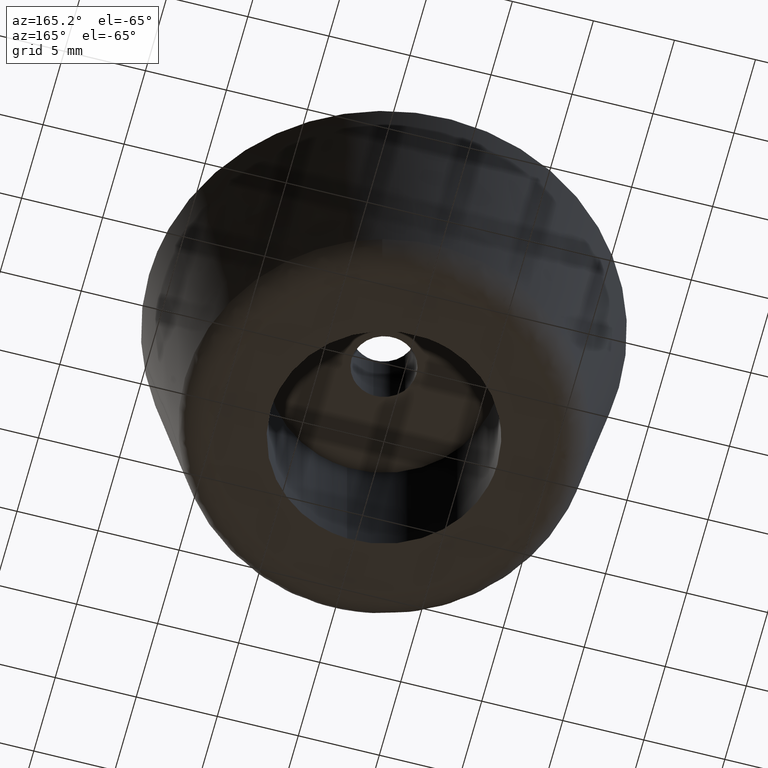
[diagram: clean part render]
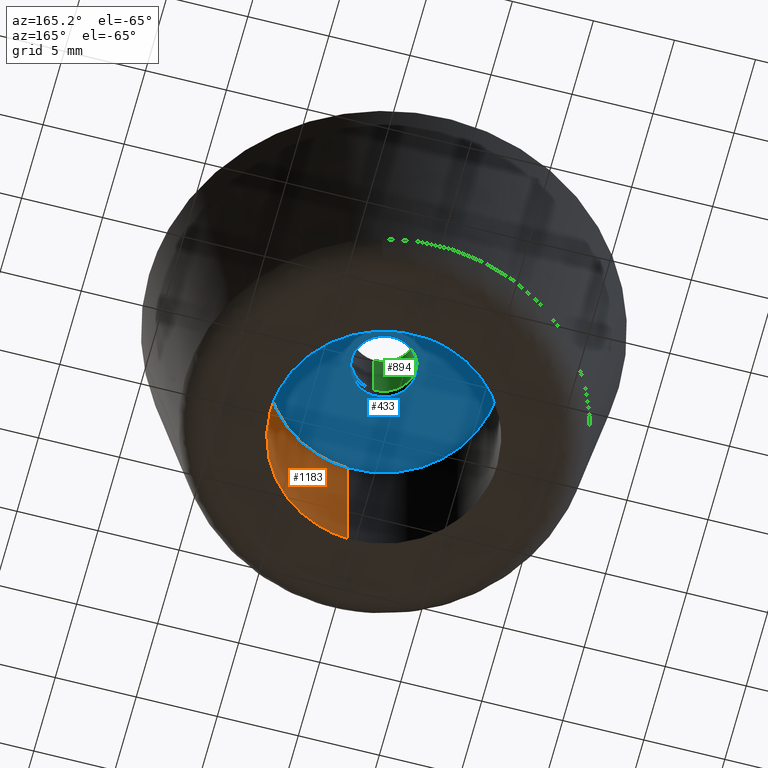
[diagram: same view with three faces highlighted in distinct colors, each labeled with its STEP entity id]
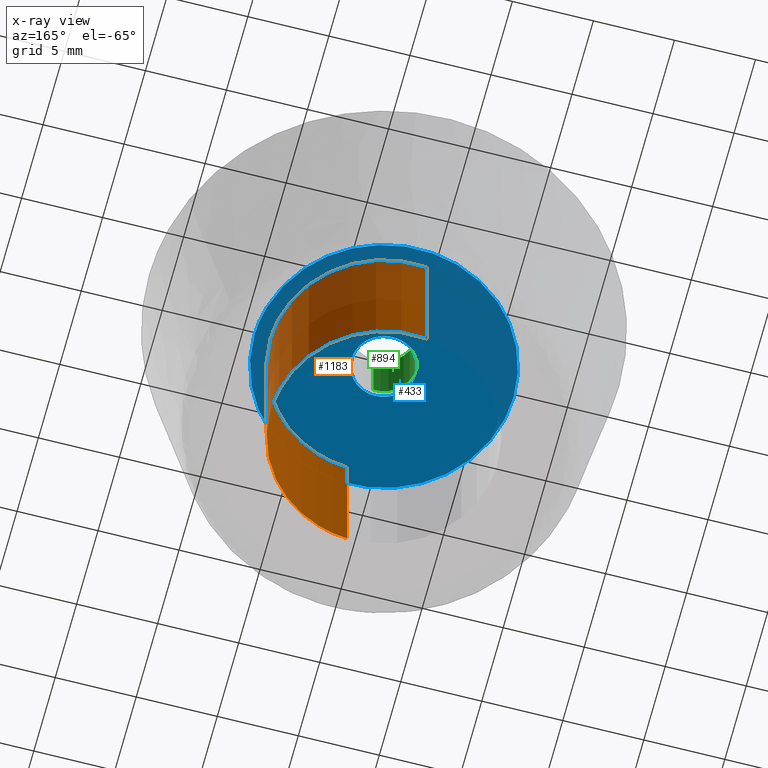
[diagram: x-ray of the same camera — body ghosted, the three highlighted faces saturated]
A machine part, auxiliary view with three faces highlighted in distinct colors.
The next image is the same camera in x-ray (body ghosted, the three faces saturated) — at least one of them is partly hidden behind the body in this view.
Their STEP definitions:

[orange] entity #1183 — the highlighted face is a freeform B-spline surface patch.
#1081=CARTESIAN_POINT('',(-0.826239642597309,6.951066684545665,10.250000000000002));
#1082=CARTESIAN_POINT('',(-0.627303100465844,6.974713308140240,10.250000000000005));
#1083=CARTESIAN_POINT('',(-0.427339776743999,6.986943588953067,10.250000000000000));
#1084=CARTESIAN_POINT('',(6.559603812209068,7.414283365697066,10.250000000000002));
#1085=CARTESIAN_POINT('',(6.986943588953067,0.427339776743999,10.250000000000000));
#1086=CARTESIAN_POINT('',(7.414283365697066,-6.559603812209068,10.250000000000002));
#1087=CARTESIAN_POINT('',(0.427339776743999,-6.986943588953067,10.250000000000000));
#1088=CARTESIAN_POINT('',(-0.826239642597309,6.951066684545665,-0.256250000000000));
#1089=CARTESIAN_POINT('',(-0.627303100465844,6.974713308140240,-0.256250000000000));
#1090=CARTESIAN_POINT('',(-0.427339776743999,6.986943588953067,-0.256250000000000));
#1091=CARTESIAN_POINT('',(6.559603812209068,7.414283365697066,-0.256250000000000));
#1092=CARTESIAN_POINT('',(6.986943588953067,0.427339776743999,-0.256250000000000));
#1093=CARTESIAN_POINT('',(7.414283365697066,-6.559603812209068,-0.256250000000000));
#1094=CARTESIAN_POINT('',(0.427339776743999,-6.986943588953067,-0.256250000000000));
#1102=(BOUNDED_SURFACE()B_SPLINE_SURFACE(2,1,((#1081,#1088),(#1082,#1089),(#1083,#1090),(#1084,#1091),(#1085,#1092),(#1086,#1093),(#1087,#1094)),.UNSPECIFIED.,.F.,.F.,.U.)B_SPLINE_SURFACE_WITH_KNOTS((3,2,2,3),(2,2),(0.0,0.463919189857867,12.061898936304530,23.659878682751181),(0.0,10.506250000000000),.UNSPECIFIED.)GEOMETRIC_REPRESENTATION_ITEM()RATIONAL_B_SPLINE_SURFACE(((0.977505800795127,0.977505800795127),(0.988284271247462,0.988284271247462),(1.0,1.0),(0.707106781186548,0.707106781186548),(1.0,1.0),(0.707106781186548,0.707106781186548),(1.0,1.0)))REPRESENTATION_ITEM('')SURFACE());
#1103=CARTESIAN_POINT('',(-0.826234102055871,6.951067343118522,-2.302776E-014));
#1104=VERTEX_POINT('',#1103);
#1105=CARTESIAN_POINT('',(7.0,0.0,0.0));
#1106=VERTEX_POINT('',#1105);
#1107=CARTESIAN_POINT('',(-0.826234102055871,6.951067343118522,-2.302776E-014));
#1108=CARTESIAN_POINT('',(-0.414566038006035,7.0,0.0));
#1109=CARTESIAN_POINT('',(0.0,7.0,0.0));
#1110=CARTESIAN_POINT('',(6.999999999999999,6.999999999999999,0.0));
#1111=CARTESIAN_POINT('',(7.0,0.0,0.0));
#1119=(BOUNDED_CURVE()B_SPLINE_CURVE(2,(#1107,#1108,#1109,#1110,#1111),.UNSPECIFIED.,.F.,.U.)B_SPLINE_CURVE_WITH_KNOTS((3,2,3),(0.229562608224401,0.250000000000000,0.500000000000000),.UNSPECIFIED.)CURVE()GEOMETRIC_REPRESENTATION_ITEM()RATIONAL_B_SPLINE_CURVE((0.956027018222732,0.976056106154773,1.0,0.707106781186547,1.0))REPRESENTATION_ITEM(''));
#1120=EDGE_CURVE('',#1104,#1106,#1119,.T.);
#1121=ORIENTED_EDGE('',*,*,#1120,.T.);
#1122=CARTESIAN_POINT('',(0.427331635497001,-6.986944086883543,-3.233525E-014));
#1123=VERTEX_POINT('',#1122);
#1124=CARTESIAN_POINT('',(7.0,0.0,0.0));
#1125=CARTESIAN_POINT('',(7.000000000000001,-6.584950155513472,0.0));
#1126=CARTESIAN_POINT('',(0.427331635497001,-6.986944086883544,-3.233525E-014));
#1134=(BOUNDED_CURVE()B_SPLINE_CURVE(2,(#1124,#1125,#1126),.UNSPECIFIED.,.F.,.U.)B_SPLINE_CURVE_WITH_KNOTS((3,3),(0.500000000000000,0.739333163295008),.UNSPECIFIED.)CURVE()GEOMETRIC_REPRESENTATION_ITEM()RATIONAL_B_SPLINE_CURVE((1.0,0.719603757734878,0.976072472568516))REPRESENTATION_ITEM(''));
#1135=EDGE_CURVE('',#1106,#1123,#1134,.T.);
#1136=ORIENTED_EDGE('',*,*,#1135,.T.);
#1137=CARTESIAN_POINT('',(0.427331736019021,-6.986944080735587,10.0));
#1138=VERTEX_POINT('',#1137);
#1139=CARTESIAN_POINT('',(0.427331736019021,-6.986944080735587,10.0));
#1140=CARTESIAN_POINT('',(0.427331635497001,-6.986944086883543,-3.233525E-014));
#1141=QUASI_UNIFORM_CURVE('',1,(#1139,#1140),.UNSPECIFIED.,.F.,.U.);
#1142=EDGE_CURVE('',#1138,#1123,#1141,.T.);
#1143=ORIENTED_EDGE('',*,*,#1142,.F.);
#1144=CARTESIAN_POINT('',(7.0,0.0,10.0));
#1145=VERTEX_POINT('',#1144);
#1146=CARTESIAN_POINT('',(7.0,0.0,10.0));
#1147=CARTESIAN_POINT('',(7.0,-6.584950060597964,10.0));
#1148=CARTESIAN_POINT('',(0.427331736019021,-6.986944080735587,10.0));
#1156=(BOUNDED_CURVE()B_SPLINE_CURVE(2,(#1146,#1147,#1148),.UNSPECIFIED.,.F.,.U.)B_SPLINE_CURVE_WITH_KNOTS((3,3),(0.500000000000000,0.739333160812555),.UNSPECIFIED.)CURVE()GEOMETRIC_REPRESENTATION_ITEM()RATIONAL_B_SPLINE_CURVE((1.0,0.719603760643252,0.976072467248138))REPRESENTATION_ITEM(''));
#1157=EDGE_CURVE('',#1145,#1138,#1156,.T.);
#1158=ORIENTED_EDGE('',*,*,#1157,.F.);
#1159=CARTESIAN_POINT('',(-0.826234170480709,6.951067334985302,10.0));
#1160=VERTEX_POINT('',#1159);
#1161=CARTESIAN_POINT('',(-0.826234170480709,6.951067334985302,10.0));
#1162=CARTESIAN_POINT('',(-0.414566072580135,7.0,10.0));
#1163=CARTESIAN_POINT('',(0.0,7.0,10.0));
#1164=CARTESIAN_POINT('',(6.999999999999999,6.999999999999999,10.0));
#1165=CARTESIAN_POINT('',(7.0,0.0,10.0));
#1173=(BOUNDED_CURVE()B_SPLINE_CURVE(2,(#1161,#1162,#1163,#1164,#1165),.UNSPECIFIED.,.F.,.U.)B_SPLINE_CURVE_WITH_KNOTS((3,2,3),(0.229562606560768,0.250000000000000,0.500000000000000),.UNSPECIFIED.)CURVE()GEOMETRIC_REPRESENTATION_ITEM()RATIONAL_B_SPLINE_CURVE((0.956027014961940,0.976056104205706,1.0,0.707106781186547,1.0))REPRESENTATION_ITEM(''));
#1174=EDGE_CURVE('',#1160,#1145,#1173,.T.);
#1175=ORIENTED_EDGE('',*,*,#1174,.F.);
#1176=CARTESIAN_POINT('',(-0.826234170480709,6.951067334985302,10.0));
#1177=CARTESIAN_POINT('',(-0.826234102055871,6.951067343118522,-2.302776E-014));
#1178=QUASI_UNIFORM_CURVE('',1,(#1176,#1177),.UNSPECIFIED.,.F.,.U.);
#1179=EDGE_CURVE('',#1160,#1104,#1178,.T.);
#1180=ORIENTED_EDGE('',*,*,#1179,.T.);
#1181=EDGE_LOOP('',(#1121,#1136,#1143,#1158,#1175,#1180));
#1182=FACE_OUTER_BOUND('',#1181,.T.);
#1183=ADVANCED_FACE('',(#1182),#1102,.F.);

[blue] entity #433 — the highlighted face is a freeform B-spline surface patch.
#66=CARTESIAN_POINT('',(-0.236066904912473,1.986019238678861,10.000000000000060));
#67=VERTEX_POINT('',#66);
#68=CARTESIAN_POINT('',(2.0,0.0,10.0));
#69=VERTEX_POINT('',#68);
#70=CARTESIAN_POINT('',(-0.236066904912473,1.986019238678861,10.000000000000057));
#71=CARTESIAN_POINT('',(-0.118447448834066,2.000000000000000,10.0));
#72=CARTESIAN_POINT('',(0.0,2.0,10.0));
#73=CARTESIAN_POINT('',(2.000000000000000,2.000000000000000,10.000000000000002));
#74=CARTESIAN_POINT('',(2.0,0.0,10.0));
#82=(BOUNDED_CURVE()B_SPLINE_CURVE(2,(#70,#71,#72,#73,#74),.UNSPECIFIED.,.F.,.U.)B_SPLINE_CURVE_WITH_KNOTS((3,2,3),(0.229562606640688,0.250000000000000,0.500000000000000),.UNSPECIFIED.)CURVE()GEOMETRIC_REPRESENTATION_ITEM()RATIONAL_B_SPLINE_CURVE((0.956027015118585,0.976056104299337,1.0,0.707106781186548,1.0))REPRESENTATION_ITEM(''));
#83=EDGE_CURVE('',#67,#69,#82,.T.);
#85=CARTESIAN_POINT('',(0.122097079093709,-1.996269596842266,10.0));
#86=VERTEX_POINT('',#85);
#87=CARTESIAN_POINT('',(2.0,0.0,10.0));
#88=CARTESIAN_POINT('',(2.000000000000000,-1.881412133766066,9.999999999999996));
#89=CARTESIAN_POINT('',(0.122097079093709,-1.996269596842266,10.0));
#97=(BOUNDED_CURVE()B_SPLINE_CURVE(2,(#87,#88,#89),.UNSPECIFIED.,.F.,.U.)B_SPLINE_CURVE_WITH_KNOTS((3,3),(0.500000000000000,0.739332962237819),.UNSPECIFIED.)CURVE()GEOMETRIC_REPRESENTATION_ITEM()RATIONAL_B_SPLINE_CURVE((1.0,0.719603993288027,0.976072041664310))REPRESENTATION_ITEM(''));
#98=EDGE_CURVE('',#69,#86,#97,.T.);
#165=CARTESIAN_POINT('',(-2.0,0.0,10.0));
#166=VERTEX_POINT('',#165);
#167=CARTESIAN_POINT('',(-2.0,0.0,10.0));
#168=CARTESIAN_POINT('',(-2.000000000000000,1.776350460995845,10.0));
#169=CARTESIAN_POINT('',(-0.236066904912473,1.986019238678861,10.000000000000057));
#177=(BOUNDED_CURVE()B_SPLINE_CURVE(2,(#167,#168,#169),.UNSPECIFIED.,.F.,.U.)B_SPLINE_CURVE_WITH_KNOTS((3,3),(0.0,0.229562606640688),.UNSPECIFIED.)CURVE()GEOMETRIC_REPRESENTATION_ITEM()RATIONAL_B_SPLINE_CURVE((1.0,0.731050676887210,0.956027015118585))REPRESENTATION_ITEM(''));
#178=EDGE_CURVE('',#166,#67,#177,.T.);
#212=CARTESIAN_POINT('',(0.122097079093709,-1.996269596842266,9.999999999999998));
#213=CARTESIAN_POINT('',(0.061105526621240,-2.000000000000000,9.999999999999998));
#214=CARTESIAN_POINT('',(0.0,-2.0,10.0));
#215=CARTESIAN_POINT('',(-2.000000000000000,-2.000000000000000,10.000000000000002));
#216=CARTESIAN_POINT('',(-2.0,0.0,10.0));
#224=(BOUNDED_CURVE()B_SPLINE_CURVE(2,(#212,#213,#214,#215,#216),.UNSPECIFIED.,.F.,.U.)B_SPLINE_CURVE_WITH_KNOTS((3,2,3),(0.739332962237820,0.750000000000000,1.0),.UNSPECIFIED.)CURVE()GEOMETRIC_REPRESENTATION_ITEM()RATIONAL_B_SPLINE_CURVE((0.976072041664312,0.987502787898522,1.0,0.707106781186548,1.0))REPRESENTATION_ITEM(''));
#225=EDGE_CURVE('',#86,#166,#224,.T.);
#252=CARTESIAN_POINT('',(-0.944267938764192,7.944076916784368,9.999999999999696));
#253=VERTEX_POINT('',#252);
#254=CARTESIAN_POINT('',(8.0,0.0,10.0));
#255=VERTEX_POINT('',#254);
#256=CARTESIAN_POINT('',(-0.944267938764192,7.944076916784368,9.999999999999696));
#257=CARTESIAN_POINT('',(-0.473789956580197,8.0,10.0));
#258=CARTESIAN_POINT('',(0.0,8.0,10.0));
#259=CARTESIAN_POINT('',(8.0,8.0,10.000000000000002));
#260=CARTESIAN_POINT('',(8.0,0.0,10.0));
#268=(BOUNDED_CURVE()B_SPLINE_CURVE(2,(#256,#257,#258,#259,#260),.UNSPECIFIED.,.F.,.U.)B_SPLINE_CURVE_WITH_KNOTS((3,2,3),(0.229562599851810,0.250000000000000,0.500000000000000),.UNSPECIFIED.)CURVE()GEOMETRIC_REPRESENTATION_ITEM()RATIONAL_B_SPLINE_CURVE((0.956027001812091,0.976056096345673,1.0,0.707106781186548,1.0))REPRESENTATION_ITEM(''));
#269=EDGE_CURVE('',#253,#255,#268,.T.);
#310=CARTESIAN_POINT('',(0.488380093829617,-7.985078890272976,10.000000000000391));
#311=VERTEX_POINT('',#310);
#317=CARTESIAN_POINT('',(8.0,0.0,10.0));
#318=CARTESIAN_POINT('',(8.0,-7.525656299091968,10.0));
#319=CARTESIAN_POINT('',(0.488380093829617,-7.985078890272976,10.000000000000387));
#327=(BOUNDED_CURVE()B_SPLINE_CURVE(2,(#317,#318,#319),.UNSPECIFIED.,.F.,.U.)B_SPLINE_CURVE_WITH_KNOTS((3,3),(0.500000000000000,0.739333139918046),.UNSPECIFIED.)CURVE()GEOMETRIC_REPRESENTATION_ITEM()RATIONAL_B_SPLINE_CURVE((1.0,0.719603785122692,0.976072422467154))REPRESENTATION_ITEM(''));
#328=EDGE_CURVE('',#255,#311,#327,.T.);
#351=CARTESIAN_POINT('',(-8.0,0.0,10.0));
#352=VERTEX_POINT('',#351);
#353=CARTESIAN_POINT('',(-8.0,0.0,10.0));
#354=CARTESIAN_POINT('',(-8.0,7.105401556549496,10.0));
#355=CARTESIAN_POINT('',(-0.944267938764192,7.944076916784368,9.999999999999696));
#363=(BOUNDED_CURVE()B_SPLINE_CURVE(2,(#353,#354,#355),.UNSPECIFIED.,.F.,.U.)B_SPLINE_CURVE_WITH_KNOTS((3,3),(0.0,0.229562599851810),.UNSPECIFIED.)CURVE()GEOMETRIC_REPRESENTATION_ITEM()RATIONAL_B_SPLINE_CURVE((1.0,0.731050684840875,0.956027001812091))REPRESENTATION_ITEM(''));
#364=EDGE_CURVE('',#352,#253,#363,.T.);
#366=CARTESIAN_POINT('',(0.488380093829617,-7.985078890272976,10.000000000000387));
#367=CARTESIAN_POINT('',(0.244417983636943,-8.0,10.0));
#368=CARTESIAN_POINT('',(0.0,-8.0,10.0));
#369=CARTESIAN_POINT('',(-8.0,-8.0,10.000000000000002));
#370=CARTESIAN_POINT('',(-8.0,0.0,10.0));
#378=(BOUNDED_CURVE()B_SPLINE_CURVE(2,(#366,#367,#368,#369,#370),.UNSPECIFIED.,.F.,.U.)B_SPLINE_CURVE_WITH_KNOTS((3,2,3),(0.739333139918046,0.750000000000000,1.0),.UNSPECIFIED.)CURVE()GEOMETRIC_REPRESENTATION_ITEM()RATIONAL_B_SPLINE_CURVE((0.976072422467154,0.987502996063855,1.0,0.707106781186548,1.0))REPRESENTATION_ITEM(''));
#379=EDGE_CURVE('',#311,#352,#378,.T.);
#416=CARTESIAN_POINT('',(-8.799199968988896,-8.799005706689355,10.0));
#417=CARTESIAN_POINT('',(8.799200398142338,-8.799005706689355,10.0));
#418=CARTESIAN_POINT('',(-8.799199968988896,8.799054487130640,10.0));
#419=CARTESIAN_POINT('',(8.799200398142338,8.799054487130640,10.0));
#420=B_SPLINE_SURFACE_WITH_KNOTS('',1,1,((#416,#418),(#417,#419)),.UNSPECIFIED.,.F.,.F.,.U.,(2,2),(2,2),(0.0,17.598400367131230),(0.0,17.598060193820000),.UNSPECIFIED.);
#421=ORIENTED_EDGE('',*,*,#364,.T.);
#422=ORIENTED_EDGE('',*,*,#269,.T.);
#423=ORIENTED_EDGE('',*,*,#328,.T.);
#424=ORIENTED_EDGE('',*,*,#379,.T.);
#425=EDGE_LOOP('',(#421,#422,#423,#424));
#426=FACE_OUTER_BOUND('',#425,.T.);
#427=ORIENTED_EDGE('',*,*,#98,.F.);
#428=ORIENTED_EDGE('',*,*,#83,.F.);
#429=ORIENTED_EDGE('',*,*,#178,.F.);
#430=ORIENTED_EDGE('',*,*,#225,.F.);
#431=EDGE_LOOP('',(#427,#428,#429,#430));
#432=FACE_BOUND('',#431,.T.);
#433=ADVANCED_FACE('',(#426,#432),#420,.F.);

[green] entity #894 — the highlighted face is a freeform B-spline surface patch.
#731=CARTESIAN_POINT('',(-0.236066905370687,1.986019238624396,14.999999999999989));
#732=VERTEX_POINT('',#731);
#750=CARTESIAN_POINT('',(-0.236066924168918,1.986019236389971,10.800000000000001));
#751=VERTEX_POINT('',#750);
#752=CARTESIAN_POINT('',(-0.236066905370687,1.986019238624396,14.999999999999989));
#753=CARTESIAN_POINT('',(-0.236066924168918,1.986019236389971,10.800000000000001));
#754=QUASI_UNIFORM_CURVE('',1,(#752,#753),.UNSPECIFIED.,.F.,.U.);
#755=EDGE_CURVE('',#732,#751,#754,.T.);
#774=CARTESIAN_POINT('',(0.122097079093708,-1.996269596842266,10.800000000000001));
#775=VERTEX_POINT('',#774);
#789=CARTESIAN_POINT('',(0.122097079093708,-1.996269596842266,15.0));
#790=VERTEX_POINT('',#789);
#791=CARTESIAN_POINT('',(0.122097079093708,-1.996269596842266,15.0));
#792=CARTESIAN_POINT('',(0.122097079093708,-1.996269596842266,10.800000000000001));
#793=QUASI_UNIFORM_CURVE('',1,(#791,#792),.UNSPECIFIED.,.F.,.U.);
#794=EDGE_CURVE('',#790,#775,#793,.T.);
#812=CARTESIAN_POINT('',(0.122097079069714,-1.996269596843733,15.105000000000000));
#813=CARTESIAN_POINT('',(-1.874172517774020,-2.118366675913447,15.104999999999999));
#814=CARTESIAN_POINT('',(-1.996269596843733,-0.122097079069714,15.105000000000000));
#815=CARTESIAN_POINT('',(-2.111572393465055,1.763086981679002,15.105000000000000));
#816=CARTESIAN_POINT('',(-0.236068469313517,1.986019052727332,15.105000000000000));
#817=CARTESIAN_POINT('',(0.122097079069714,-1.996269596843733,10.692375000000000));
#818=CARTESIAN_POINT('',(-1.874172517774020,-2.118366675913447,10.692375000000000));
#819=CARTESIAN_POINT('',(-1.996269596843733,-0.122097079069714,10.692375000000000));
#820=CARTESIAN_POINT('',(-2.111572393465055,1.763086981679002,10.692374999999998));
#821=CARTESIAN_POINT('',(-0.236068469313517,1.986019052727332,10.692374999999997));
#829=(BOUNDED_SURFACE()B_SPLINE_SURFACE(2,1,((#812,#817),(#813,#818),(#814,#819),(#815,#820),(#816,#821)),.UNSPECIFIED.,.F.,.F.,.U.)B_SPLINE_SURFACE_WITH_KNOTS((3,2,3),(2,2),(0.0,3.313708498984759,6.494868658010128),(0.0,4.412625000000004),.UNSPECIFIED.)GEOMETRIC_REPRESENTATION_ITEM()RATIONAL_B_SPLINE_SURFACE(((1.0,1.0),(0.707106781186548,0.707106781186548),(1.0,1.0),(0.718822509939086,0.718822509939086),(0.977505800795127,0.977505800795127)))REPRESENTATION_ITEM('')SURFACE());
#830=CARTESIAN_POINT('',(-2.0,0.0,15.0));
#831=VERTEX_POINT('',#830);
#832=CARTESIAN_POINT('',(-2.0,0.0,15.0));
#833=CARTESIAN_POINT('',(-2.000000000000000,1.776350460583122,14.999999999999996));
#834=CARTESIAN_POINT('',(-0.236066905370687,1.986019238624396,14.999999999999991));
#842=(BOUNDED_CURVE()B_SPLINE_CURVE(2,(#832,#833,#834),.UNSPECIFIED.,.F.,.U.)B_SPLINE_CURVE_WITH_KNOTS((3,3),(0.0,0.229562606601695),.UNSPECIFIED.)CURVE()GEOMETRIC_REPRESENTATION_ITEM()RATIONAL_B_SPLINE_CURVE((1.0,0.731050676932893,0.956027015042158))REPRESENTATION_ITEM(''));
#843=EDGE_CURVE('',#831,#732,#842,.T.);
#844=ORIENTED_EDGE('',*,*,#843,.F.);
#845=CARTESIAN_POINT('',(0.122097079093708,-1.996269596842266,14.999999999999998));
#846=CARTESIAN_POINT('',(0.061105526621239,-2.000000000000000,15.000000000000005));
#847=CARTESIAN_POINT('',(0.0,-2.0,15.0));
#848=CARTESIAN_POINT('',(-2.000000000000000,-2.000000000000000,14.999999999999995));
#849=CARTESIAN_POINT('',(-2.0,0.0,15.0));
#857=(BOUNDED_CURVE()B_SPLINE_CURVE(2,(#845,#846,#847,#848,#849),.UNSPECIFIED.,.F.,.U.)B_SPLINE_CURVE_WITH_KNOTS((3,2,3),(0.739332962237820,0.750000000000000,1.0),.UNSPECIFIED.)CURVE()GEOMETRIC_REPRESENTATION_ITEM()RATIONAL_B_SPLINE_CURVE((0.976072041664312,0.987502787898522,1.0,0.707106781186548,1.0))REPRESENTATION_ITEM(''));
#858=EDGE_CURVE('',#790,#831,#857,.T.);
#859=ORIENTED_EDGE('',*,*,#858,.F.);
#860=ORIENTED_EDGE('',*,*,#794,.T.);
#861=CARTESIAN_POINT('',(-2.0,0.0,10.800000000000001));
#862=VERTEX_POINT('',#861);
#863=CARTESIAN_POINT('',(0.122097079093708,-1.996269596842266,10.799999999999999));
#864=CARTESIAN_POINT('',(0.061105526621239,-2.000000000000000,10.799999999999999));
#865=CARTESIAN_POINT('',(0.0,-2.0,10.800000000000001));
#866=CARTESIAN_POINT('',(-2.000000000000000,-2.000000000000000,10.800000000000001));
#867=CARTESIAN_POINT('',(-2.0,0.0,10.800000000000001));
#875=(BOUNDED_CURVE()B_SPLINE_CURVE(2,(#863,#864,#865,#866,#867),.UNSPECIFIED.,.F.,.U.)B_SPLINE_CURVE_WITH_KNOTS((3,2,3),(0.739332962237820,0.750000000000000,1.0),.UNSPECIFIED.)CURVE()GEOMETRIC_REPRESENTATION_ITEM()RATIONAL_B_SPLINE_CURVE((0.976072041664312,0.987502787898522,1.0,0.707106781186548,1.0))REPRESENTATION_ITEM(''));
#876=EDGE_CURVE('',#775,#862,#875,.T.);
#877=ORIENTED_EDGE('',*,*,#876,.T.);
#878=CARTESIAN_POINT('',(-2.0,0.0,10.800000000000001));
#879=CARTESIAN_POINT('',(-2.000000000000000,1.776350443651105,10.799999999999999));
#880=CARTESIAN_POINT('',(-0.236066924168918,1.986019236389971,10.800000000000004));
#888=(BOUNDED_CURVE()B_SPLINE_CURVE(2,(#878,#879,#880),.UNSPECIFIED.,.F.,.U.)B_SPLINE_CURVE_WITH_KNOTS((3,3),(0.0,0.229562605002031),.UNSPECIFIED.)CURVE()GEOMETRIC_REPRESENTATION_ITEM()RATIONAL_B_SPLINE_CURVE((1.0,0.731050678807015,0.956027011906748))REPRESENTATION_ITEM(''));
#889=EDGE_CURVE('',#862,#751,#888,.T.);
#890=ORIENTED_EDGE('',*,*,#889,.T.);
#891=ORIENTED_EDGE('',*,*,#755,.F.);
#892=EDGE_LOOP('',(#844,#859,#860,#877,#890,#891));
#893=FACE_OUTER_BOUND('',#892,.T.);
#894=ADVANCED_FACE('',(#893),#829,.F.);